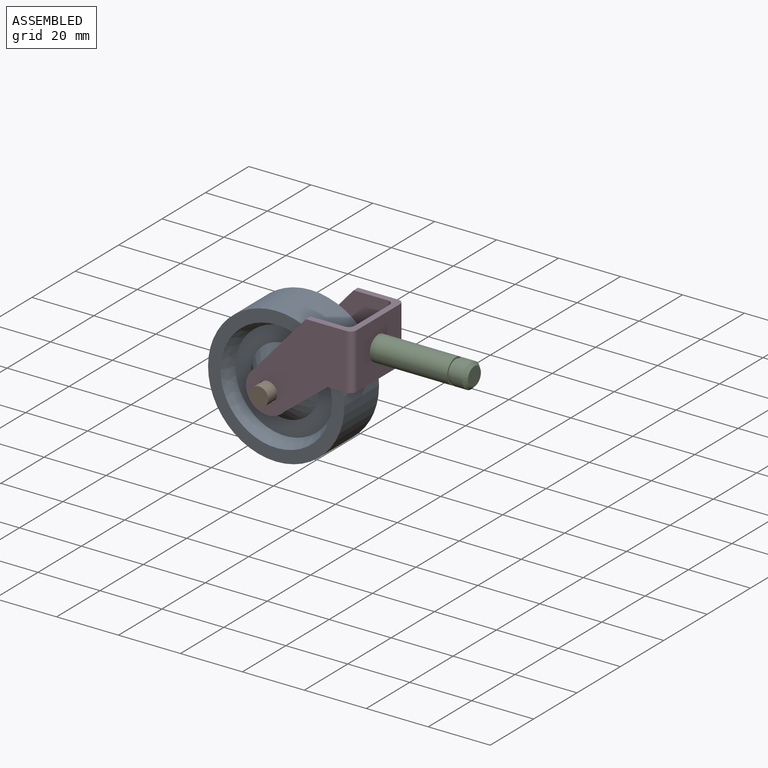
[diagram: assembled view]
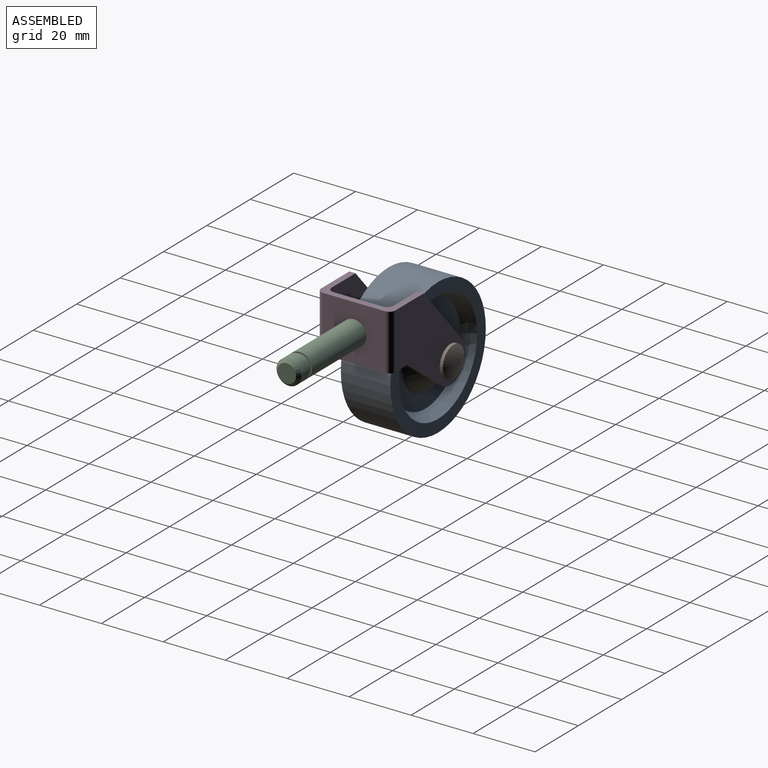
[diagram: assembled view, second angle]
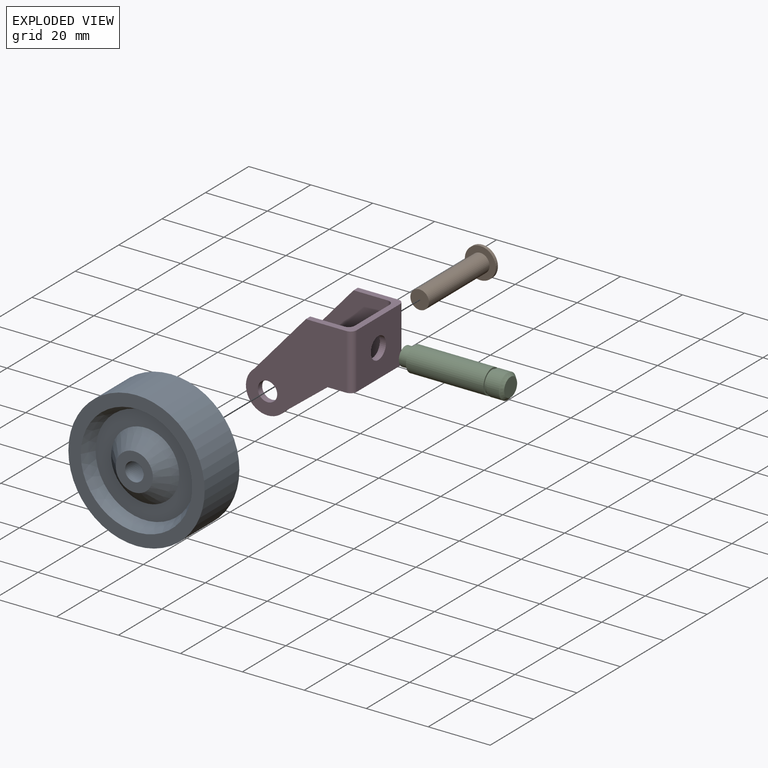
[diagram: exploded view]
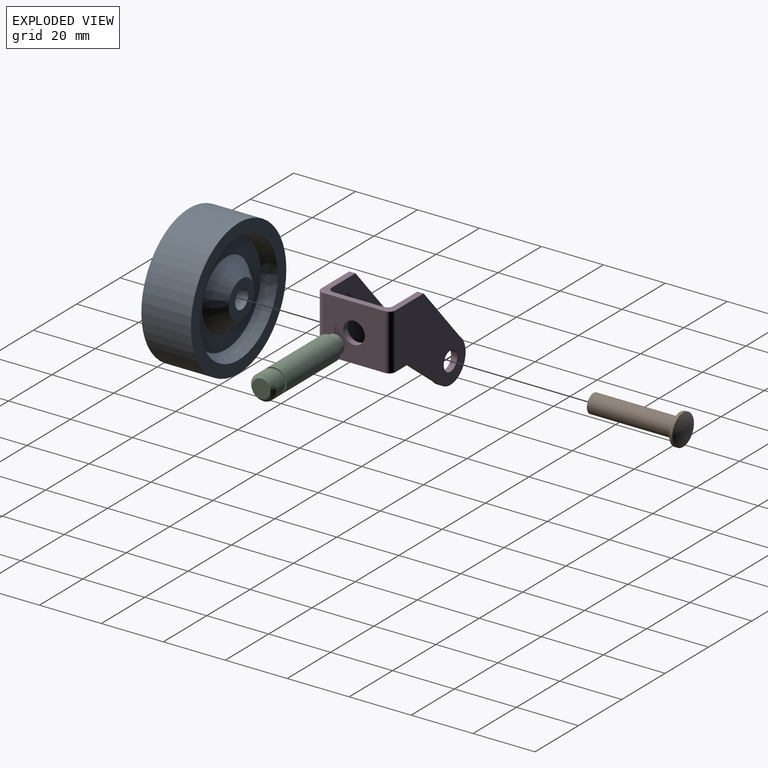
[diagram: exploded view, second angle]
ASSEMBLY  parts=4 mates=3
PART A: 12 faces, bbox 18x44x44 mm
  f0: plane 12x12mm, normal (-1,0,0), area 84.8mm2, adj f1,f11
  f1: cylinder r=3mm len=18mm, axis (1,0,0), area 339.3mm2, adj f0,f2
  f2: plane 12x12mm, normal (1,0,0), area 84.8mm2, adj f1,f3
  f3: cone r=11mm half-angle=45deg, axis (-1,0,0), area 377.6mm2, adj f2,f4
  f4: plane 32x32mm, normal (1,0,0), area 424.1mm2, adj f3,f5
  f5: cone r=16mm half-angle=26.6deg, axis (1,0,0), area 477.7mm2, adj f4,f6
  f6: plane 44x44mm, normal (1,0,0), area 502.7mm2, adj f5,f7
  f7: cylinder r=22mm len=44mm, axis (1,0,0), area 2211.7mm2, adj f6,f8
  f8: plane 44x44mm, normal (-1,0,0), area 502.7mm2, adj f7,f9
  f9: cone r=16mm half-angle=26.6deg, axis (-1,0,0), area 477.7mm2, adj f8,f10
  f10: plane 32x32mm, normal (-1,0,0), area 424.1mm2, adj f9,f11
  f11: cone r=6mm half-angle=45deg, axis (1,0,0), area 377.6mm2, adj f0,f10
PART B: 5 faces, bbox 10x30.6x10 mm
  f0: plane 6x6mm, normal (0,-1,0), area 28.3mm2, adj f1
  f1: cylinder r=3mm len=27.96mm, axis (0,-1,0), area 527.1mm2, adj f0,f2
  f2: plane 10x10mm, normal (0,-1,0), area 50.3mm2, adj f1,f3
  f3: cylinder r=5mm len=10mm, axis (0,-1,0), area 31.4mm2, adj f2,f4
  f4: torus R=0.54mm, axis (0,-1,0), area 82.6mm2, adj f3
PART C: 10 faces, bbox 8x8x34 mm
  f0: plane 6x6mm, normal (0,0,-1), area 28.3mm2, adj f1
  f1: cylinder r=3mm len=6mm, axis (0,0,1), area 56.5mm2, adj f0,f2
  f2: plane 8x8mm, normal (0,0,-1), area 22mm2, adj f1,f3
  f3: cylinder r=4mm len=25mm, axis (0,0,1), area 628.3mm2, adj f2,f4
  f4: plane 8x8mm, normal (0,0,1), area 11.8mm2, adj f3,f5
  f5: cylinder r=3.5mm len=7mm, axis (0,0,1), area 22mm2, adj f4,f6
  f6: plane 8x8mm, normal (0,0,-1), area 11.8mm2, adj f5,f7
  f7: cylinder r=4mm len=8mm, axis (0,0,1), area 100.5mm2, adj f6,f8
  f8: cone r=3mm half-angle=45deg, axis (0,0,-1), area 31.1mm2, adj f7,f9
  f9: plane 6x6mm, normal (0,0,1), area 28.3mm2, adj f8
PART D: 21 faces, bbox 34.4x24x31.4 mm
  f0: plane 32.36x31.42mm, normal (0,-1,0), area 566.4mm2, adj f2,f4,f8,f9,f10,f11,f20
  f1: plane 32.36x31.42mm, normal (0,1,0), area 566.4mm2, adj f2,f4,f12,f13,f14,f15,f19
  f2: plane 24x8mm, normal (0,0,-1), area 72mm2, adj f0,f1,f3,f5,f6,f7,f10,f12
  f3: plane 18x16mm, normal (-1,0,0), area 249.5mm2, adj f2,f4,f16,f17,f18
  f4: plane 24x15mm, normal (0,0,1), area 100mm2, adj f0,f1,f3,f5,f6,f7,f8,f14
  f5: plane 20x18mm, normal (1,0,0), area 321.5mm2, adj f2,f4,f16,f19,f20
  f6: plane 31.42x30.36mm, normal (0,-1,0), area 530.4mm2, adj f2,f4,f12,f13,f14,f15,f18
  f7: plane 31.42x30.36mm, normal (0,1,0), area 530.4mm2, adj f2,f4,f8,f9,f10,f11,f17
  f8: plane 18.98x16.73mm, normal (-0.75,0,0.66), area 50.6mm2, adj f0,f4,f7,f9
  f9: cylinder r=6.98mm len=12.44mm, axis (0,-1,0), area 46.6mm2, adj f0,f7,f8,f10
  f10: plane 14.05x10.93mm, normal (0.61,0,-0.79), area 35.6mm2, adj f0,f2,f7,f9
  f11: cylinder r=3.12mm len=6.25mm, axis (0,-1,0), area 39.3mm2, adj f0,f7
  f12: plane 14.05x10.93mm, normal (0.61,0,-0.79), area 35.6mm2, adj f1,f2,f6,f13
  f13: cylinder r=6.98mm len=12.44mm, axis (0,-1,0), area 46.6mm2, adj f1,f6,f12,f14
  f14: plane 18.98x16.73mm, normal (-0.75,0,0.66), area 50.6mm2, adj f1,f4,f6,f13
  f15: cylinder r=3.12mm len=6.25mm, axis (0,-1,0), area 39.3mm2, adj f1,f6
  f16: cylinder r=3.5mm len=7mm, axis (1,0,0), area 44mm2, adj f3,f5
  f17: cylinder r=2mm len=18mm, axis (0,0,1), area 56.5mm2, adj f2,f3,f4,f7
  f18: cylinder r=2mm len=18mm, axis (0,0,-1), area 56.5mm2, adj f2,f3,f4,f6
  f19: cylinder r=2mm len=18mm, axis (0,0,1), area 56.5mm2, adj f1,f2,f4,f5
  f20: cylinder r=2mm len=18mm, axis (0,0,-1), area 56.5mm2, adj f0,f2,f4,f5
PLACE A rot(axis=(0.58,0.58,0.58),120deg) t=(-46.3,-41.72,-36.11)mm
PLACE B t=(-46.3,6.36,-74.5)mm
PLACE C rot(axis=(0,1,0),90deg) t=(-44.79,-83.76,-20.67)mm
PLACE D t=(-18.92,-2.65,5.98)mm
MATE revolute A.f1 <-> D.f9  axis (0,-1,0) through (-46.3,-50.72,-36.11)mm
MATE revolute C.f1 <-> D.f16  axis (1,0,0) through (-18.92,-41.72,-20.67)mm
MATE revolute B.f1 <-> D.f9  axis (0,-1,0) through (-46.3,-29.72,-36.11)mm
